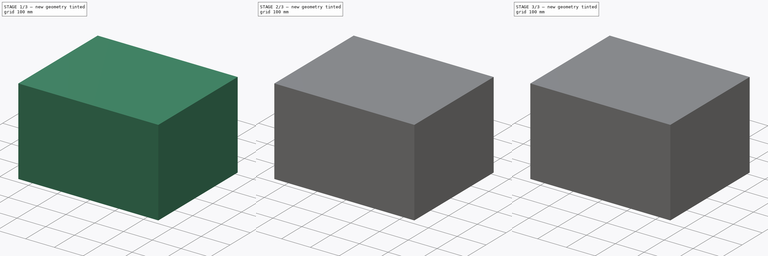
[diagram: build sequence overview — one tinted view per stage of 3, left to right]
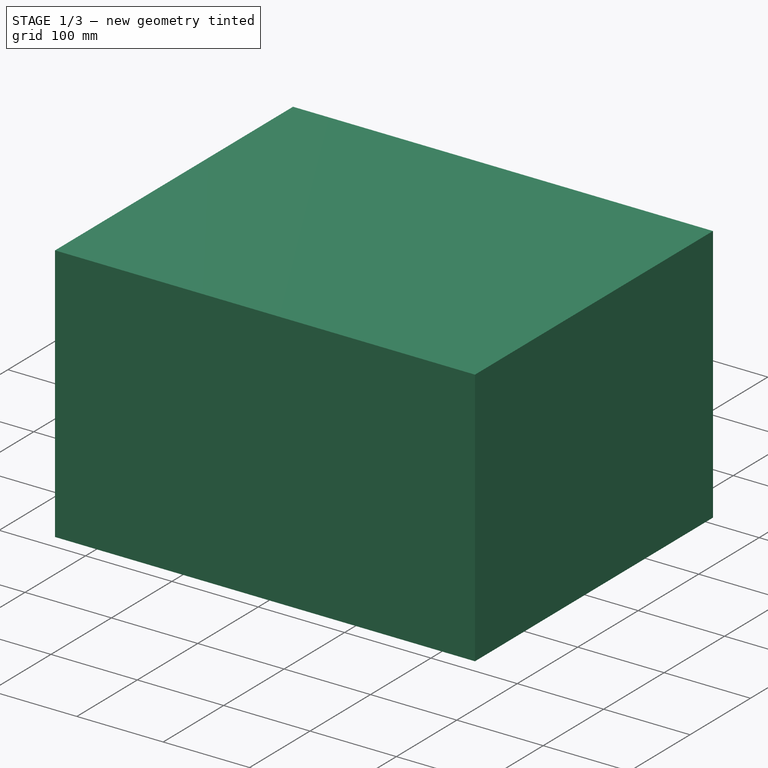
[diagram: stage 1 of 3 — iso view after this stage's code; geometry added in this stage tinted green]
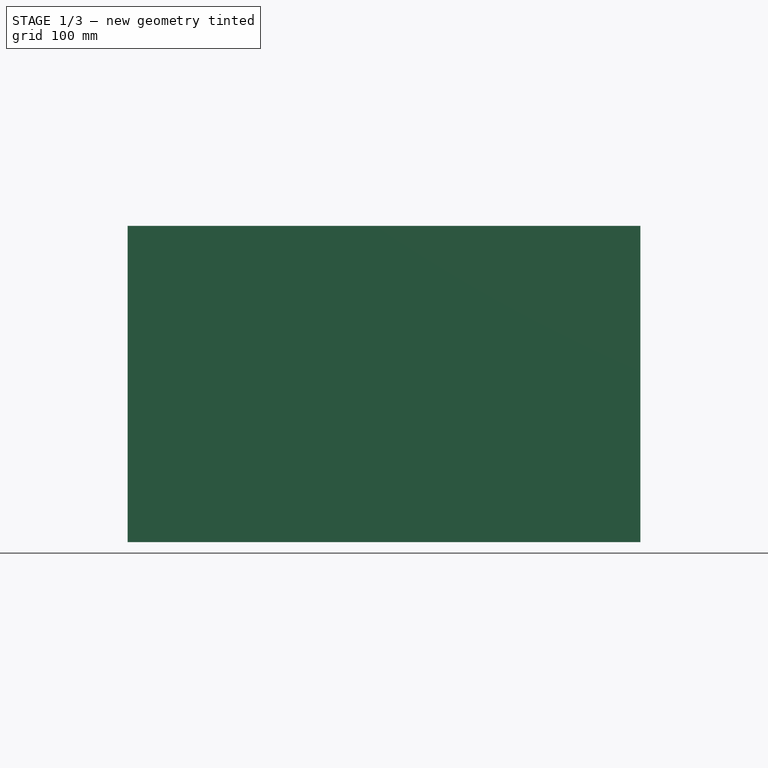
[diagram: stage 1 of 3 — front view after this stage's code; geometry added in this stage tinted green]
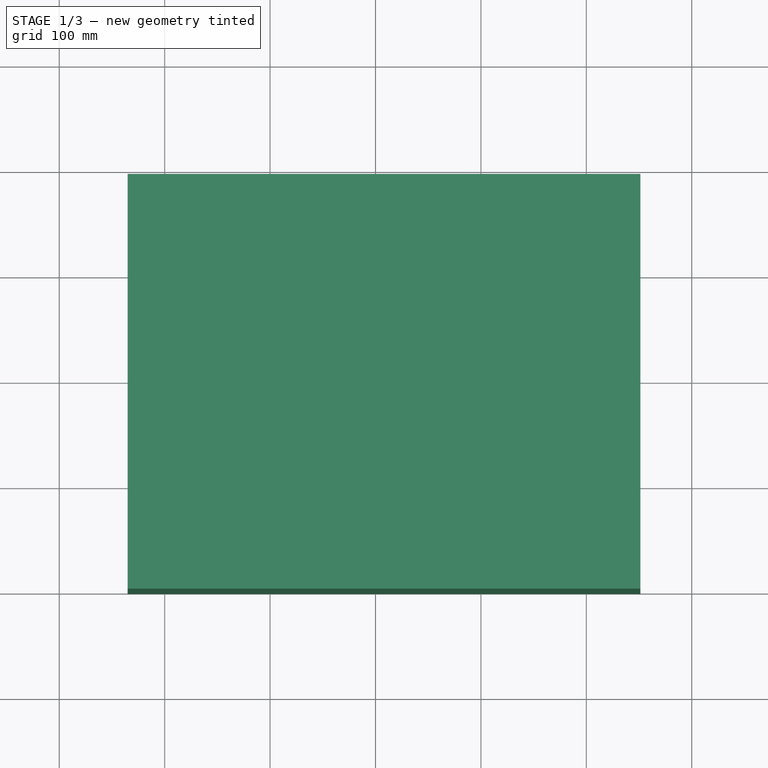
[diagram: stage 1 of 3 — top view after this stage's code; geometry added in this stage tinted green]
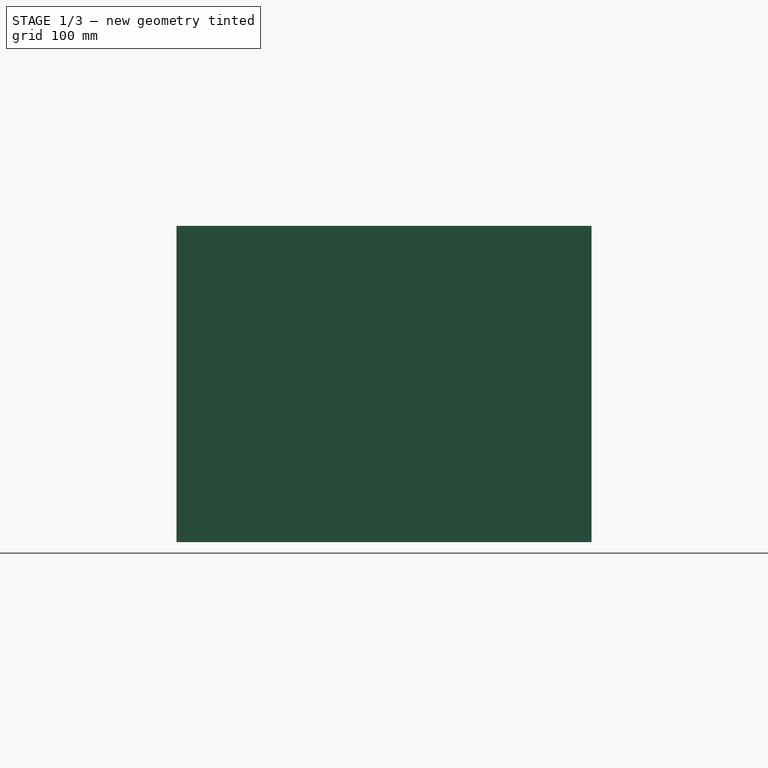
[diagram: stage 1 of 3 — right view after this stage's code; geometry added in this stage tinted green]
FCSTD DOCUMENT  (FreeCAD 0.20R29177 (Git))
Label: dipole_antenna
License: All rights reserved
LicenseURL: http://en.wikipedia.org/wiki/All_rights_reserved
objects: Sketcher::SketchObject×5, Part::Extrusion×5, Spreadsheet::Sheet×1
note: 10 computed .brp shape members not serialized (recipe doc carries the construction recipe); baked Part::Feature solids carry a one-line shape summary decoded from their .brp

FEATURE [Sketcher::SketchObject] Sketch013  label="simbox sketch"
  FullyConstrained = false
  sketch-geometry (4):
    g0: LineSegment StartX=-235.101 StartY=193.327 StartZ=0 EndX=251.226 EndY=193.327 EndZ=0
    g1: LineSegment StartX=251.226 StartY=193.327 StartZ=0 EndX=251.226 EndY=-200.256 EndZ=0
    g2: LineSegment StartX=251.226 StartY=-200.256 StartZ=0 EndX=-235.101 EndY=-200.256 EndZ=0
    g3: LineSegment StartX=-235.101 StartY=-200.256 StartZ=0 EndX=-235.101 EndY=193.327 EndZ=0
  constraints (8):
    c: Coincident(g0,g1)
    c: Coincident(g1,g2)
    c: Coincident(g2,g3)
    c: Coincident(g3,g0)
    c: Horizontal(g0)
    c: Horizontal(g2)
    c: Vertical(g1)
    c: Vertical(g3)
FEATURE [Part::Extrusion] Extrude003  label="simbox"
  Base = -> Sketch013
  Dir = (0,0,1)
  DirMode = 2
  FaceMakerClass = Part::FaceMakerBullseye
  LengthFwd = 300
  LengthRev = 0
  Solid = true
  Symmetric = true
  expr: LengthFwd = <<params>>.dipole_length * 6
FEATURE [Sketcher::SketchObject] Sketch014  label="nf2ff sketch"
  FullyConstrained = false
  sketch-geometry (4):
    g0: LineSegment StartX=-27.9742 StartY=23.0305 StartZ=0 EndX=30.3886 EndY=23.0305 EndZ=0
    g1: LineSegment StartX=30.3886 StartY=23.0305 StartZ=0 EndX=30.3886 EndY=-25.7728 EndZ=0
    g2: LineSegment StartX=30.3886 StartY=-25.7728 StartZ=0 EndX=-27.9742 EndY=-25.7728 EndZ=0
    g3: LineSegment StartX=-27.9742 StartY=-25.7728 StartZ=0 EndX=-27.9742 EndY=23.0305 EndZ=0
  constraints (8):
    c: Coincident(g0,g1)
    c: Coincident(g1,g2)
    c: Coincident(g2,g3)
    c: Coincident(g3,g0)
    c: Horizontal(g0)
    c: Horizontal(g2)
    c: Vertical(g1)
    c: Vertical(g3)
FEATURE [Part::Extrusion] Extrude004  label="nf2ff_box"
  Base = -> Sketch014
  Dir = (0,0,1)
  DirMode = 2
  FaceMakerClass = Part::FaceMakerBullseye
  LengthFwd = 102
  LengthRev = 0
  Solid = true
  Symmetric = true
  expr: LengthFwd = 2 * <<params>>.dipole_length + 2
FEATURE [Sketcher::SketchObject] Sketch015  label="I probe 011"
  FullyConstrained = true
  MapMode = 5
  Placement = pos=(0,0,50) rot=(1,0,0;3.14159rad)
  expr: .Placement.Base.z = 5 * <<params>>.dipole_length / 5
  expr: Constraints[8] = <<params>>.dipole_width + 1
  expr: Constraints[9] = <<params>>.dipole_width + 1
  sketch-geometry (7):
    g0: LineSegment StartX=-0.55 StartY=0.55 StartZ=0 EndX=0.55 EndY=0.55 EndZ=0
    g1: LineSegment StartX=0.55 StartY=0.55 StartZ=0 EndX=0.55 EndY=-0.55 EndZ=0
    g2: LineSegment StartX=0.55 StartY=-0.55 StartZ=0 EndX=-0.55 EndY=-0.55 EndZ=0
    g3: LineSegment StartX=-0.55 StartY=-0.55 StartZ=0 EndX=-0.55 EndY=0.55 EndZ=0
    g4: LineSegment StartX=-0.55 StartY=0.55 StartZ=0 EndX=0.55 EndY=-0.55 EndZ=0
    g5: LineSegment StartX=-0.55 StartY=-0.55 StartZ=0 EndX=0.55 EndY=0.55 EndZ=0
    g6: GeomPoint X=0 Y=0 Z=0
  constraints (17):
    c: Coincident(g0,g1)
    c: Coincident(g1,g2)
    c: Coincident(g2,g3)
    c: Coincident(g3,g0)
    c: Horizontal(g0)
    c: Horizontal(g2)
    c: Vertical(g1)
    c: Vertical(g3)
    c: Distance(g0) = 1.1
    c: Distance(g1) = 1.1
    c: Coincident(g4,g0)
    c: Coincident(g4,g1)
    c: Coincident(g5,g2)
    c: Coincident(g5,g0)
    c: PointOnObject(g6,g4)
    c: PointOnObject(g6,g5)
    c: Coincident(g6,g-1)
FEATURE [Spreadsheet::Sheet] Spreadsheet  label="params"
  cells = A1=INPUT PARAMETERS; B1=VALUE; A2=dipole_frequency; B2(dipole_frequency)=1500000000; A3=dipole_width; B3(dipole_width)=0.1; A4=air_gap; B4(air_gap)=0.2; A6=CALCULATED PARAMETERS; B6=VALUE; A7=dipole_length; B7(dipole_length)==300000000 / dipole_frequency / 4 * 1000
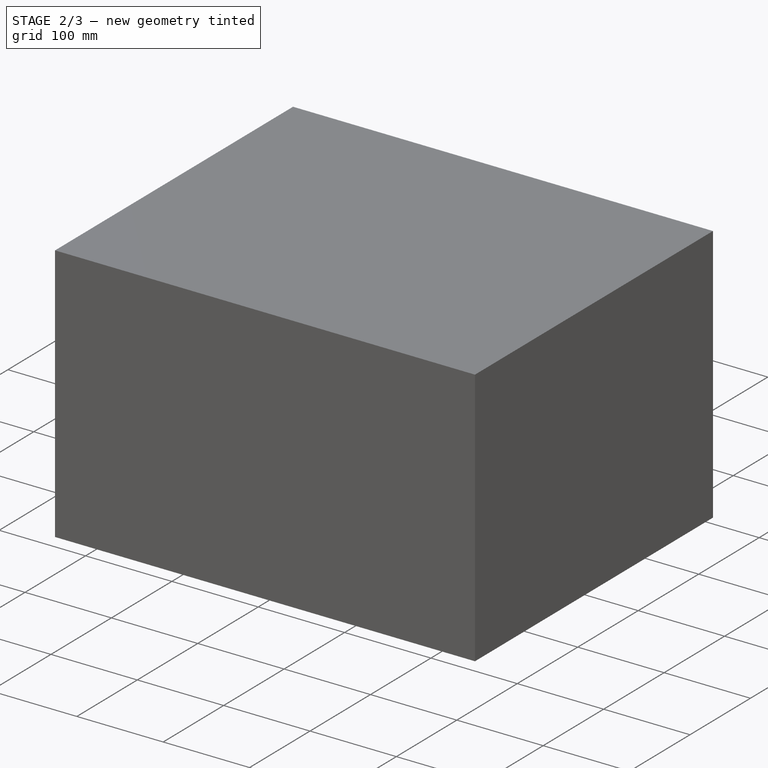
[diagram: stage 2 of 3 — iso view after this stage's code; geometry added in this stage tinted green]
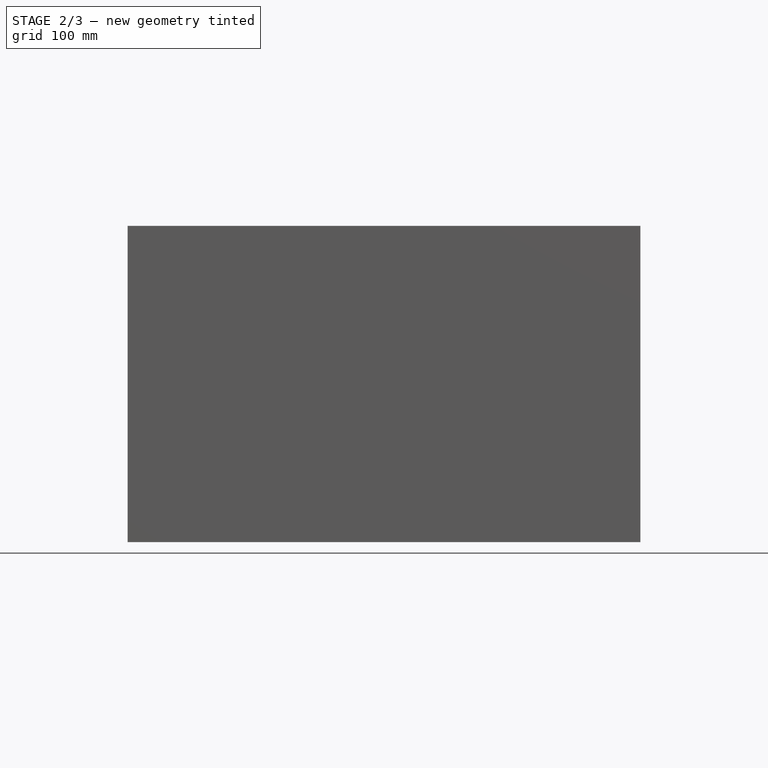
[diagram: stage 2 of 3 — front view after this stage's code; geometry added in this stage tinted green]
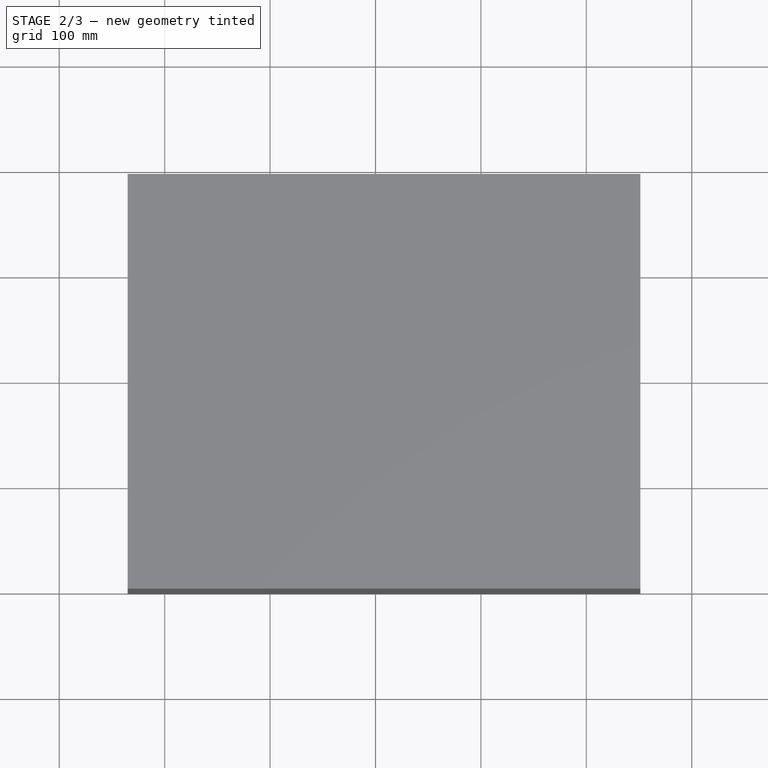
[diagram: stage 2 of 3 — top view after this stage's code; geometry added in this stage tinted green]
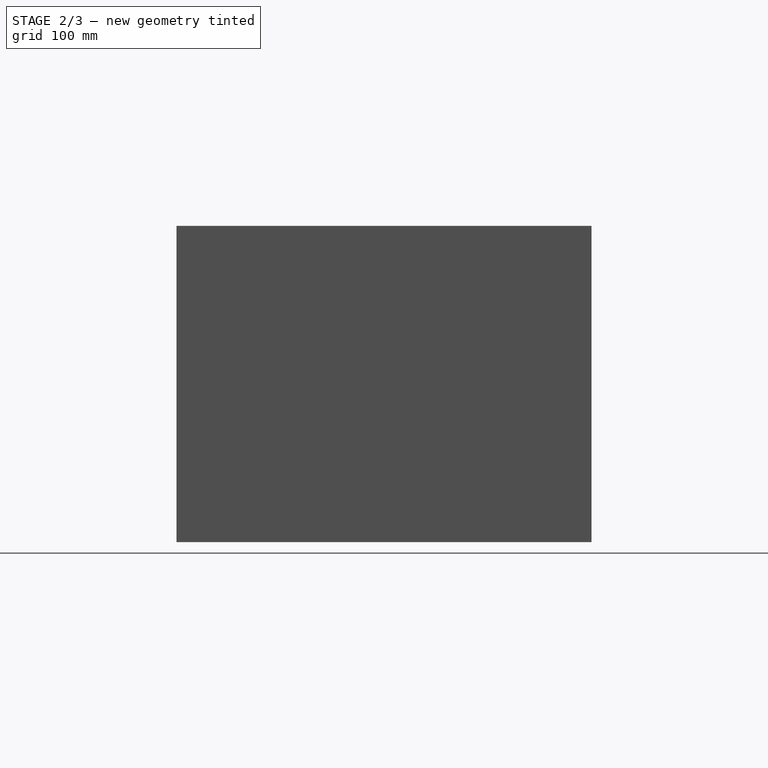
[diagram: stage 2 of 3 — right view after this stage's code; geometry added in this stage tinted green]
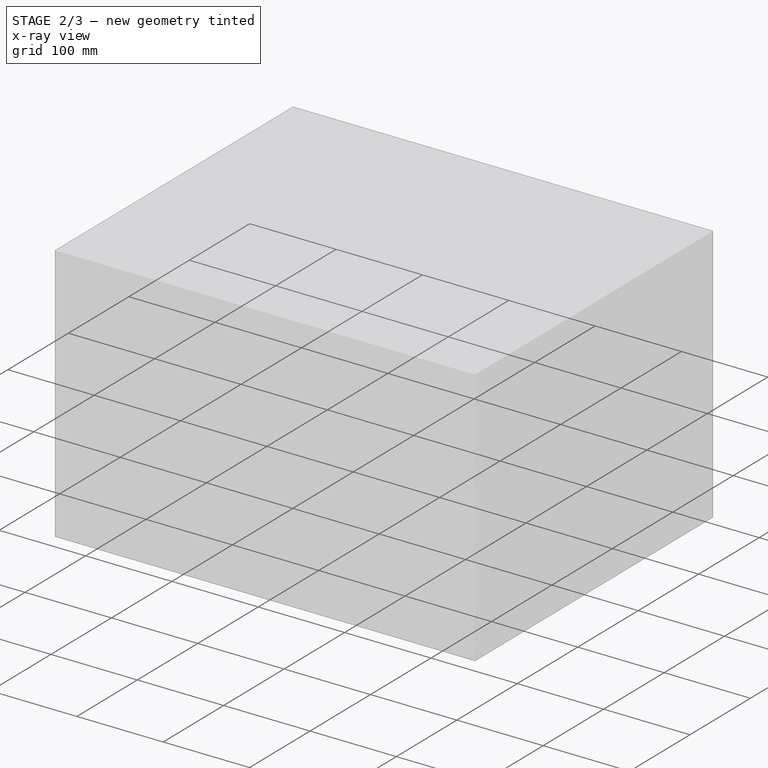
[diagram: stage 2 of 3 — x-ray composite at the iso view; earlier geometry ghosted, this stage's added geometry solid]
FEATURE [Part::Extrusion] Extrude002  label="port IN"
  Base = -> Sketch001
  Dir = (0,0,1)
  DirMode = 2
  FaceMakerClass = Part::FaceMakerBullseye
  LengthFwd = 0.25
  LengthRev = 0
  Placement = pos=(0,0,-0.03) rot=(0,0,1;0rad)
  Solid = true
  Symmetric = false
  expr: LengthFwd = <<params>>.air_gap + 0.05
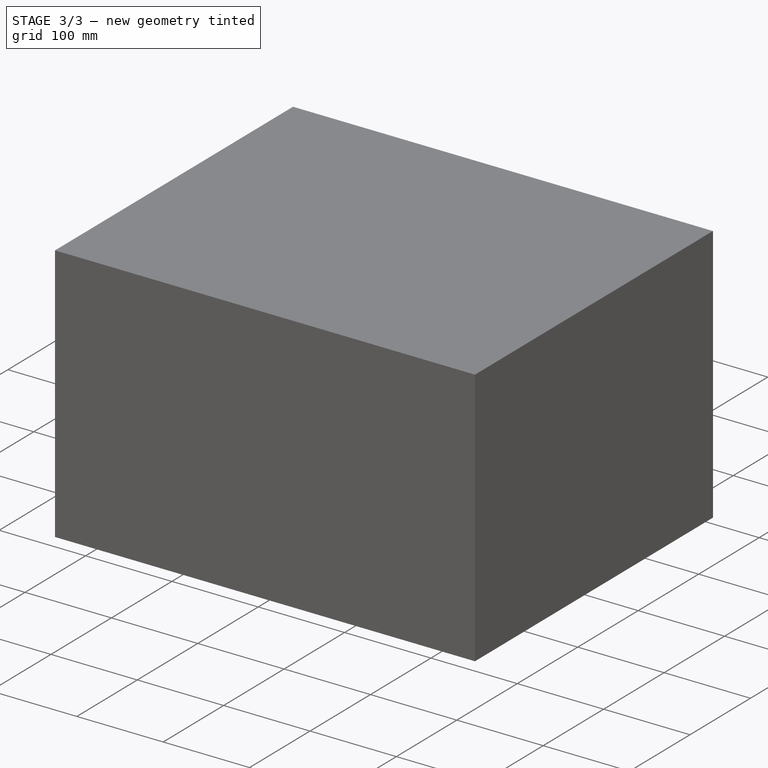
[diagram: stage 3 of 3 — iso view after this stage's code; geometry added in this stage tinted green]
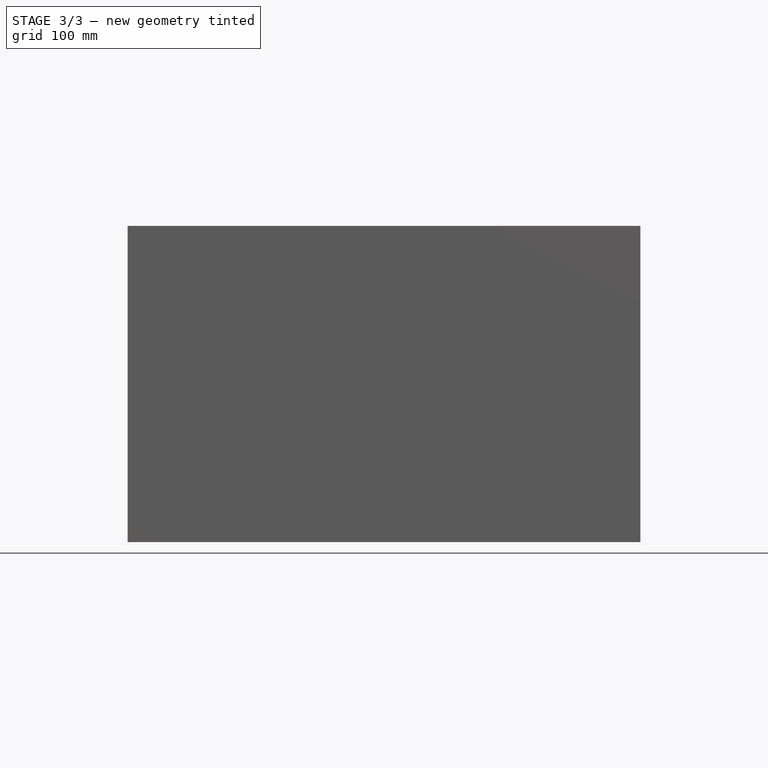
[diagram: stage 3 of 3 — front view after this stage's code; geometry added in this stage tinted green]
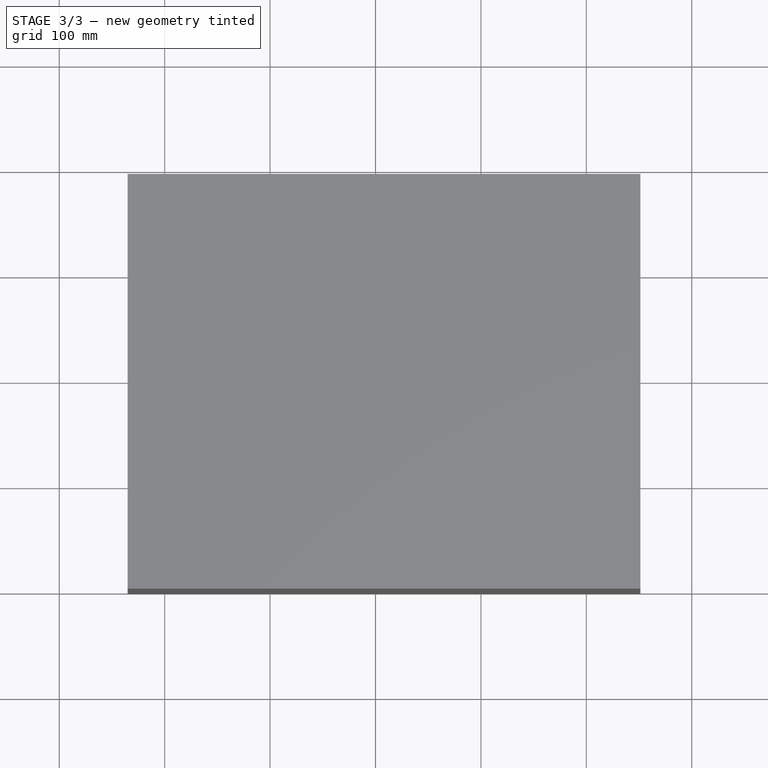
[diagram: stage 3 of 3 — top view after this stage's code; geometry added in this stage tinted green]
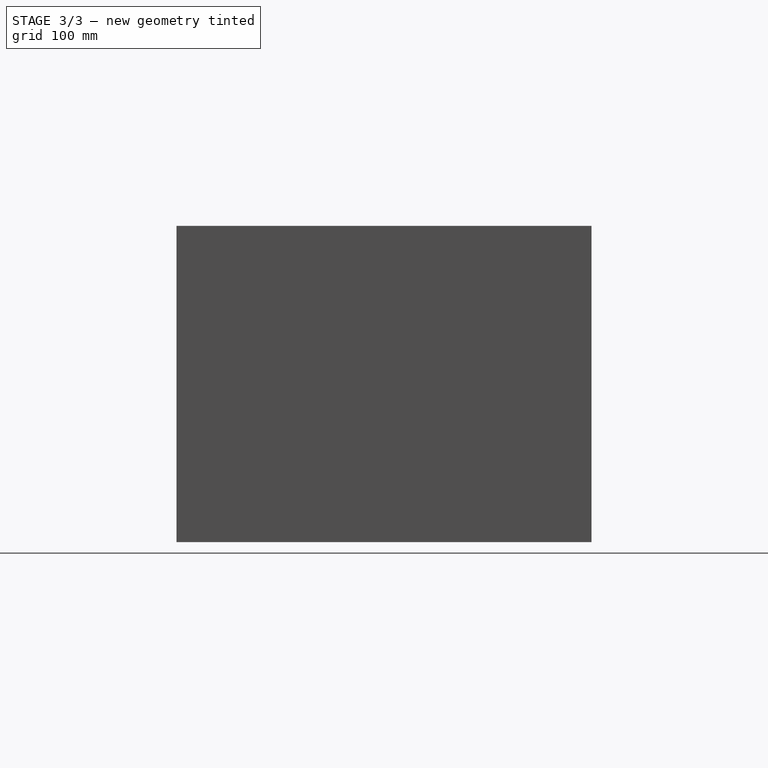
[diagram: stage 3 of 3 — right view after this stage's code; geometry added in this stage tinted green]
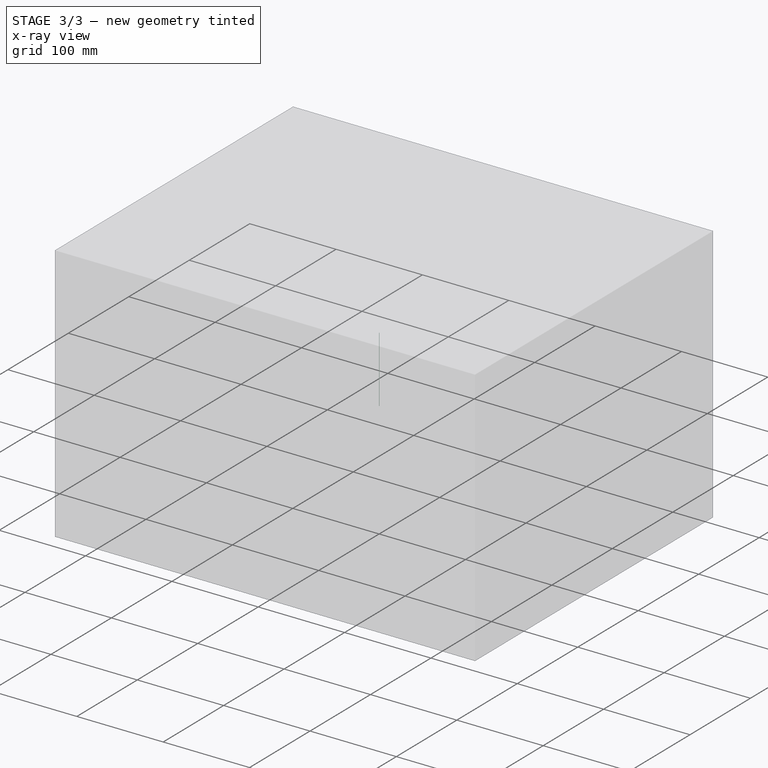
[diagram: stage 3 of 3 — x-ray composite at the iso view; earlier geometry ghosted, this stage's added geometry solid]
FEATURE [Sketcher::SketchObject] Sketch  label="top part sketch"
  FullyConstrained = true
  Placement = pos=(0,0,0.1) rot=(0,0,1;0rad)
  expr: .Placement.Base.z = <<params>>.air_gap / 2
  expr: Constraints[10] = <<params>>.dipole_width / 2
  expr: Constraints[11] = <<params>>.dipole_width / 2
  expr: Constraints[8] = <<params>>.dipole_width
  expr: Constraints[9] = <<params>>.dipole_width
  sketch-geometry (5):
    g0: LineSegment StartX=-0.05 StartY=0.05 StartZ=0 EndX=0.05 EndY=0.05 EndZ=0
    g1: LineSegment StartX=0.05 StartY=0.05 StartZ=0 EndX=0.05 EndY=-0.05 EndZ=0
    g2: LineSegment StartX=0.05 StartY=-0.05 StartZ=0 EndX=-0.05 EndY=-0.05 EndZ=0
    g3: LineSegment StartX=-0.05 StartY=-0.05 StartZ=0 EndX=-0.05 EndY=0.05 EndZ=0
    g4: GeomPoint X=0 Y=0 Z=0
  constraints (13):
    c: Coincident(g0,g1)
    c: Coincident(g1,g2)
    c: Coincident(g2,g3)
    c: Coincident(g3,g0)
    c: Horizontal(g0)
    c: Horizontal(g2)
    c: Vertical(g1)
    c: Vertical(g3)
    c: Distance(g0) = 0.1
    c: Distance(g1) = 0.1
    c: DistanceX(g0,g4) = 0.05
    c: DistanceY(g4,g0) = 0.05
    c: Coincident(g4,g-1)
FEATURE [Sketcher::SketchObject] Sketch001  label="bottom part sketch"
  FullyConstrained = true
  Placement = pos=(0,0,-0.1) rot=(0,0,1;0rad)
  expr: .Placement.Base.z = -<<params>>.air_gap / 2
  expr: Constraints[10] = <<params>>.dipole_width / 2
  expr: Constraints[11] = <<params>>.dipole_width / 2
  expr: Constraints[8] = <<params>>.dipole_width
  expr: Constraints[9] = <<params>>.dipole_width
  sketch-geometry (5):
    g0: LineSegment StartX=-0.05 StartY=0.05 StartZ=0 EndX=0.05 EndY=0.05 EndZ=0
    g1: LineSegment StartX=0.05 StartY=0.05 StartZ=0 EndX=0.05 EndY=-0.05 EndZ=0
    g2: LineSegment StartX=0.05 StartY=-0.05 StartZ=0 EndX=-0.05 EndY=-0.05 EndZ=0
    g3: LineSegment StartX=-0.05 StartY=-0.05 StartZ=0 EndX=-0.05 EndY=0.05 EndZ=0
    g4: GeomPoint X=0 Y=0 Z=0
  constraints (13):
    c: Coincident(g0,g1)
    c: Coincident(g1,g2)
    c: Coincident(g2,g3)
    c: Coincident(g3,g0)
    c: Horizontal(g0)
    c: Horizontal(g2)
    c: Vertical(g1)
    c: Vertical(g3)
    c: Distance(g0) = 0.1
    c: Distance(g1) = 0.1
    c: DistanceX(g0,g4) = 0.05
    c: DistanceY(g4,g0) = 0.05
    c: Coincident(g4,g-1)
FEATURE [Part::Extrusion] Extrude  label="top part"
  Base = -> Sketch
  Dir = (0,0,1)
  DirMode = 2
  FaceMakerClass = Part::FaceMakerBullseye
  LengthFwd = 50
  LengthRev = 0
  Solid = true
  Symmetric = false
  expr: LengthFwd = <<params>>.dipole_length
FEATURE [Part::Extrusion] Extrude001  label="bottom part"
  Base = -> Sketch001
  Dir = (0,0,1)
  DirMode = 2
  FaceMakerClass = Part::FaceMakerBullseye
  LengthFwd = 26.79
  LengthRev = 0
  Reversed = true
  Solid = true
  Symmetric = false
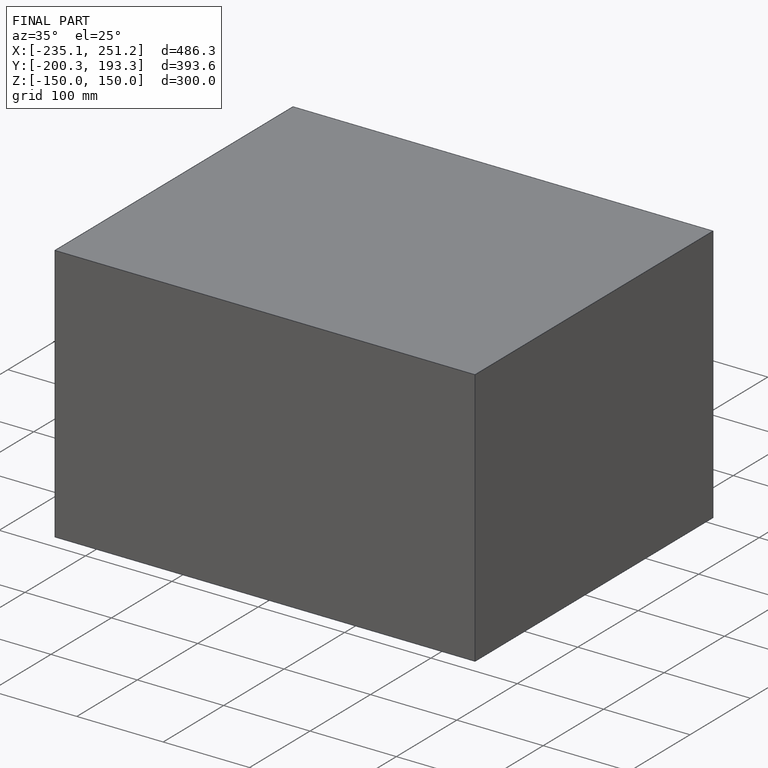
[diagram: finished part — iso view with bounding-box wireframe]
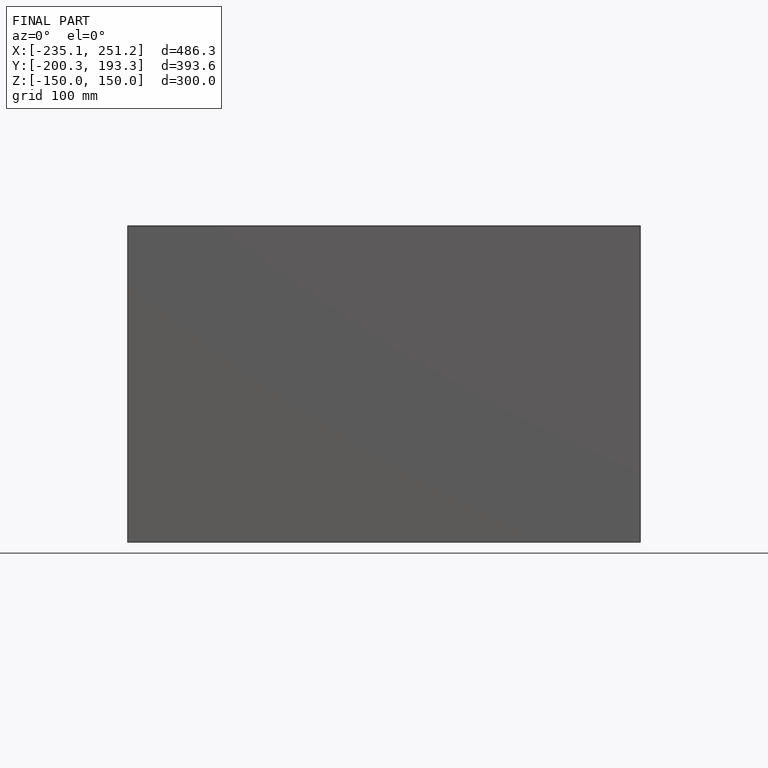
[diagram: finished part — front view with bounding-box wireframe]
